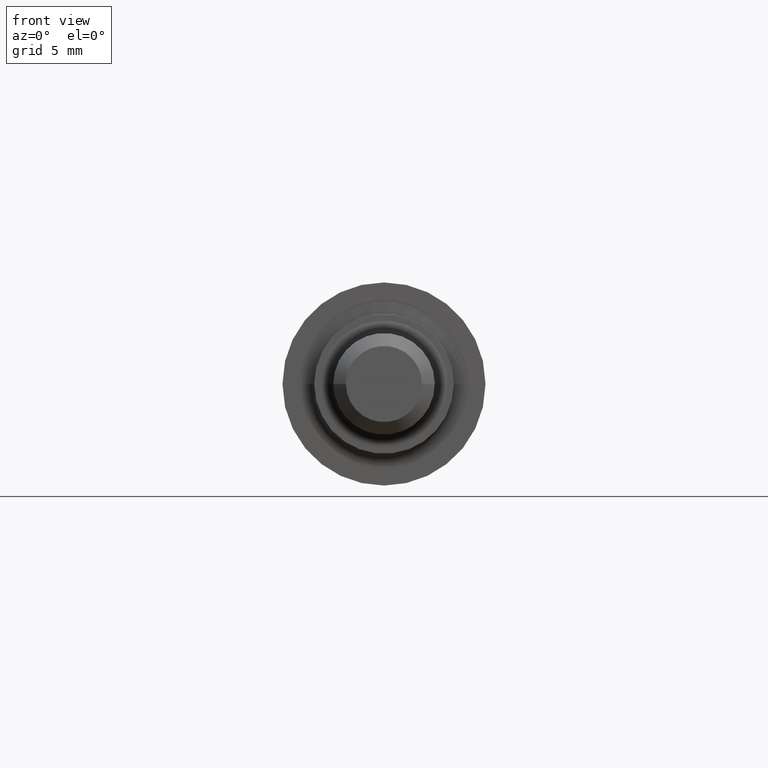
[diagram: clean part render]
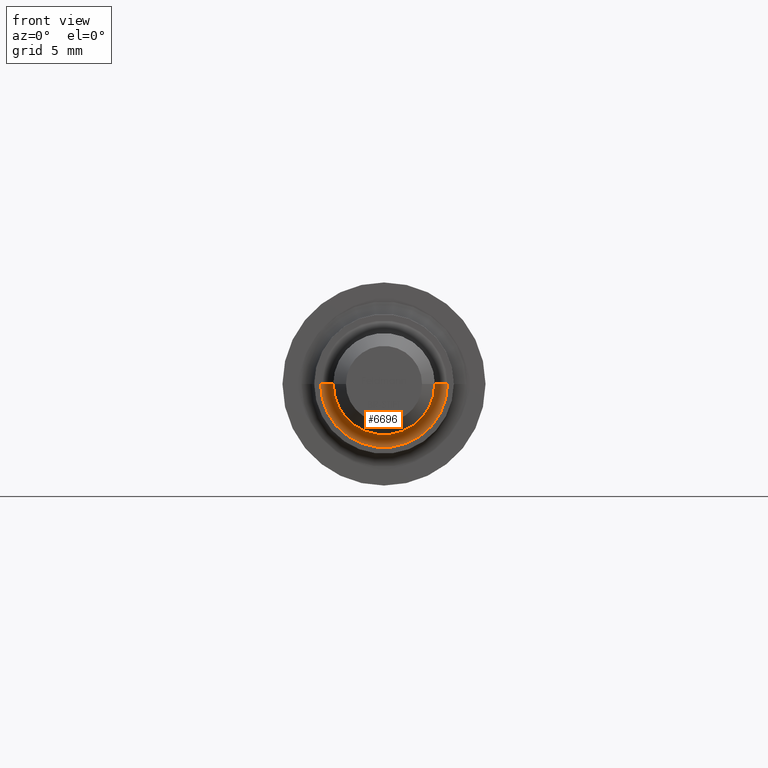
[diagram: same view with one face highlighted and labeled with its STEP entity id]
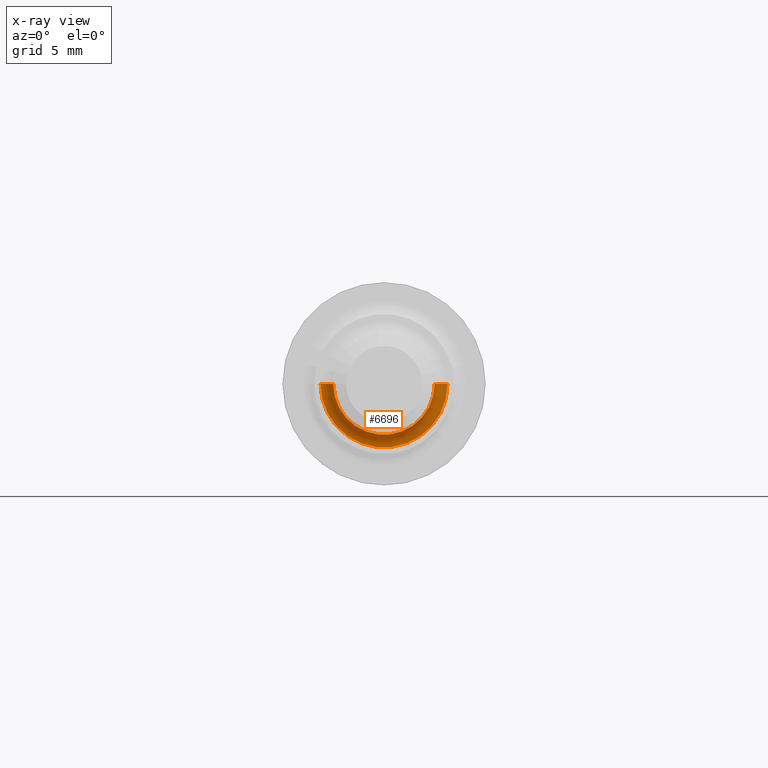
[diagram: x-ray of the same camera — body ghosted, the highlighted face saturated]
A machine part, front view. The second image highlights one B-rep face of the part: STEP entity #6696.
The next image is the same camera in x-ray: the body ghosted, the highlighted face saturated — about 0% of this face is hidden behind the body in this view.
In plain terms, the highlighted toroidal blend (fillet) surface has major radius 5 mm and minor (blend) radius 1 mm.
Its self-contained STEP definition (entity closure, byte-faithful):
#90 = TOROIDAL_SURFACE ( 'NONE', #5986, 4.999999999999997300, 1.000000000000000000 ) ;
#94 = DIRECTION ( 'NONE',  ( -1.000000000000000000, 0.0000000000000000000, 0.0000000000000000000 ) ) ;
#394 = ORIENTED_EDGE ( 'NONE', *, *, #6629, .F. ) ;
#506 = FACE_OUTER_BOUND ( 'NONE', #9147, .T. ) ;
#757 = VERTEX_POINT ( 'NONE', #2388 ) ;
#833 = DIRECTION ( 'NONE',  ( 1.224646799147353200E-016, 2.921082384358555300E-032, 1.000000000000000000 ) ) ;
#1083 = CARTESIAN_POINT ( 'NONE',  ( 2.407412430484044800E-031, -1.084202172485504400E-015, 0.0000000000000000000 ) ) ;
#1235 = CARTESIAN_POINT ( 'NONE',  ( 2.385244779468112200E-016, -1.000000000000001100, 0.0000000000000000000 ) ) ;
#1321 = EDGE_CURVE ( 'NONE', #7052, #757, #7749, .T. ) ;
#1812 = DIRECTION ( 'NONE',  ( -2.385244779468109800E-016, 1.000000000000000000, 0.0000000000000000000 ) ) ;
#1933 = EDGE_CURVE ( 'NONE', #757, #10565, #2528, .T. ) ;
#2240 = CARTESIAN_POINT ( 'NONE',  ( 2.385244779468112200E-016, -1.000000000000001100, 0.0000000000000000000 ) ) ;
#2375 = AXIS2_PLACEMENT_3D ( 'NONE', #9278, #833, #9207 ) ;
#2388 = CARTESIAN_POINT ( 'NONE',  ( 3.999999999999997300, -1.000000000000000200, 0.0000000000000000000 ) ) ;
#2528 = CIRCLE ( 'NONE', #6011, 1.000000000000000000 ) ;
#2824 = AXIS2_PLACEMENT_3D ( 'NONE', #1083, #1812, #5275 ) ;
#2976 = DIRECTION ( 'NONE',  ( 2.385244779468109800E-016, -1.000000000000000000, -0.0000000000000000000 ) ) ;
#3074 = DIRECTION ( 'NONE',  ( 1.000000000000000000, 2.168404344971010300E-016, 0.0000000000000000000 ) ) ;
#3140 = EDGE_CURVE ( 'NONE', #7052, #9179, #10086, .T. ) ;
#4410 = DIRECTION ( 'NONE',  ( 0.0000000000000000000, 0.0000000000000000000, -1.000000000000000000 ) ) ;
#5054 = ORIENTED_EDGE ( 'NONE', *, *, #1933, .F. ) ;
#5126 = CARTESIAN_POINT ( 'NONE',  ( 4.999999999999997300, 5.421010862427493200E-017, 0.0000000000000000000 ) ) ;
#5275 = DIRECTION ( 'NONE',  ( 1.000000000000000000, 2.385244779468109800E-016, 0.0000000000000000000 ) ) ;
#5986 = AXIS2_PLACEMENT_3D ( 'NONE', #1235, #2976, #7871 ) ;
#6011 = AXIS2_PLACEMENT_3D ( 'NONE', #7642, #4410, #94 ) ;
#6629 = EDGE_CURVE ( 'NONE', #10565, #9179, #7009, .T. ) ;
#6683 = CARTESIAN_POINT ( 'NONE',  ( -3.999999999999997300, -1.000000000000002000, 4.898587196589410900E-016 ) ) ;
#6696 = ADVANCED_FACE ( 'NONE', ( #506 ), #90, .F. ) ;
#6895 = CARTESIAN_POINT ( 'NONE',  ( -4.999999999999997300, -2.222614453595283700E-015, 6.123233995736763300E-016 ) ) ;
#7009 = CIRCLE ( 'NONE', #2824, 4.999999999999997300 ) ;
#7052 = VERTEX_POINT ( 'NONE', #6683 ) ;
#7346 = AXIS2_PLACEMENT_3D ( 'NONE', #2240, #8093, #3074 ) ;
#7642 = CARTESIAN_POINT ( 'NONE',  ( 4.999999999999997300, -1.000000000000000000, 0.0000000000000000000 ) ) ;
#7749 = CIRCLE ( 'NONE', #7346, 3.999999999999997300 ) ;
#7871 = DIRECTION ( 'NONE',  ( 1.000000000000000000, 2.385244779468109800E-016, 0.0000000000000000000 ) ) ;
#7900 = ORIENTED_EDGE ( 'NONE', *, *, #1321, .F. ) ;
#8093 = DIRECTION ( 'NONE',  ( 2.385244779468109800E-016, -1.000000000000000000, -0.0000000000000000000 ) ) ;
#9147 = EDGE_LOOP ( 'NONE', ( #7900, #9667, #394, #5054 ) ) ;
#9179 = VERTEX_POINT ( 'NONE', #6895 ) ;
#9207 = DIRECTION ( 'NONE',  ( 1.000000000000000000, 0.0000000000000000000, -1.224646799147353500E-016 ) ) ;
#9278 = CARTESIAN_POINT ( 'NONE',  ( -4.999999999999997300, -1.000000000000002200, 6.123233995736763300E-016 ) ) ;
#9667 = ORIENTED_EDGE ( 'NONE', *, *, #3140, .T. ) ;
#10086 = CIRCLE ( 'NONE', #2375, 1.000000000000000000 ) ;
#10565 = VERTEX_POINT ( 'NONE', #5126 ) ;